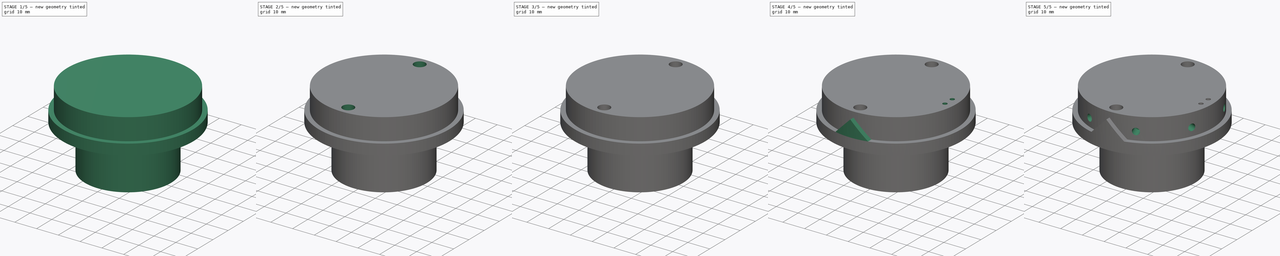
[diagram: build sequence overview — one tinted view per stage of 5, left to right]
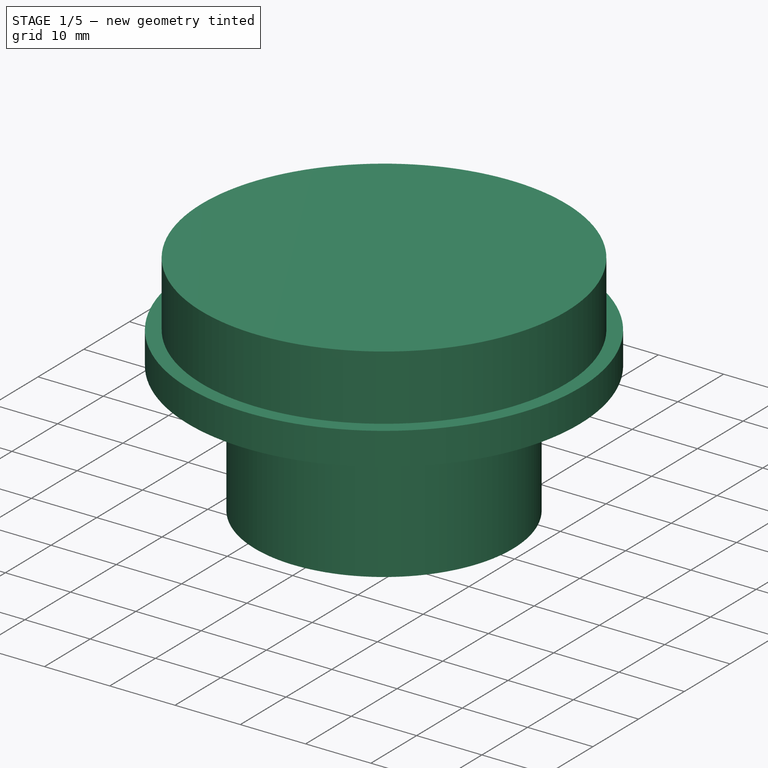
[diagram: stage 1 of 5 — iso view after this stage's code; geometry added in this stage tinted green]
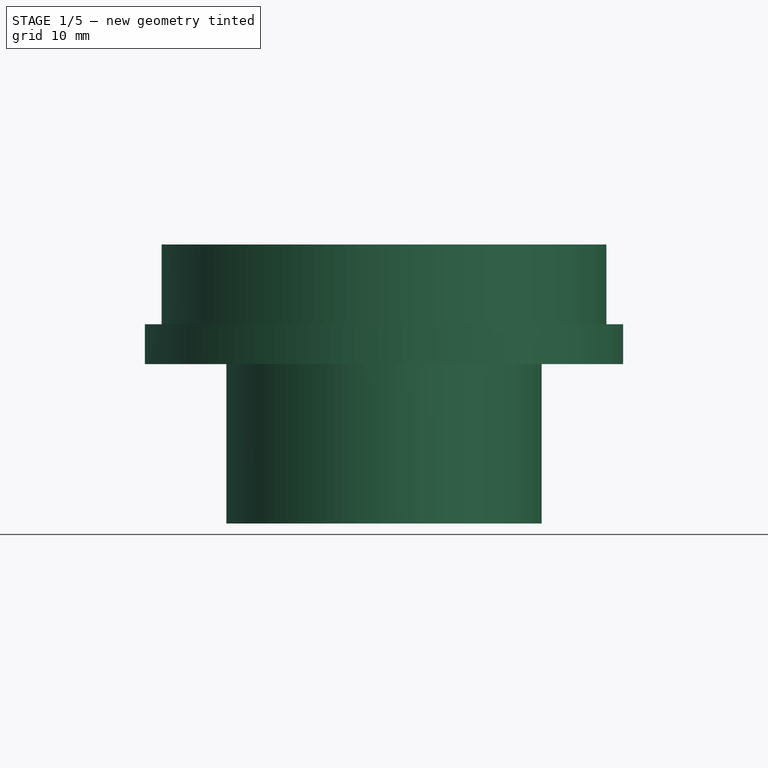
[diagram: stage 1 of 5 — front view after this stage's code; geometry added in this stage tinted green]
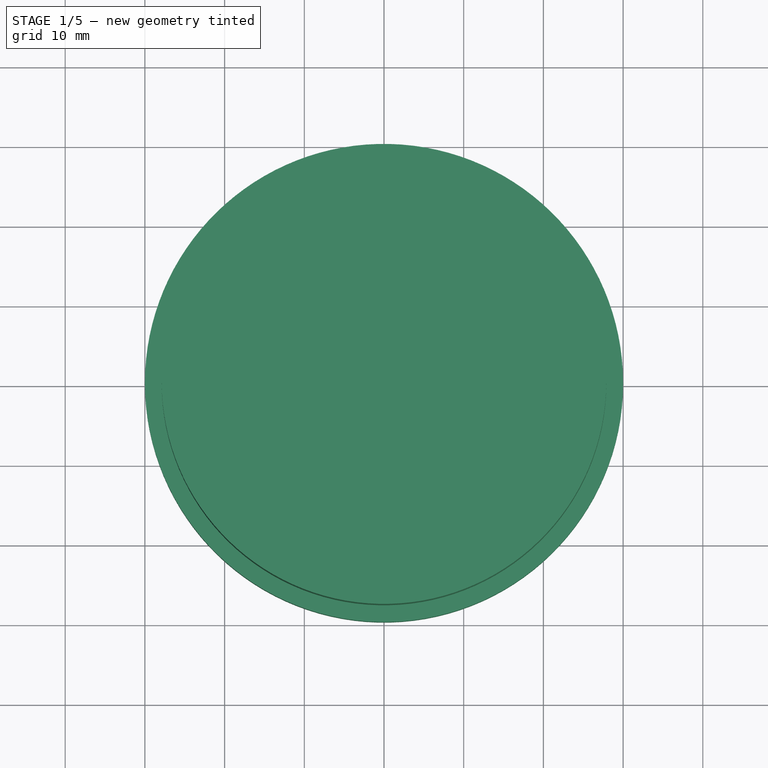
[diagram: stage 1 of 5 — top view after this stage's code; geometry added in this stage tinted green]
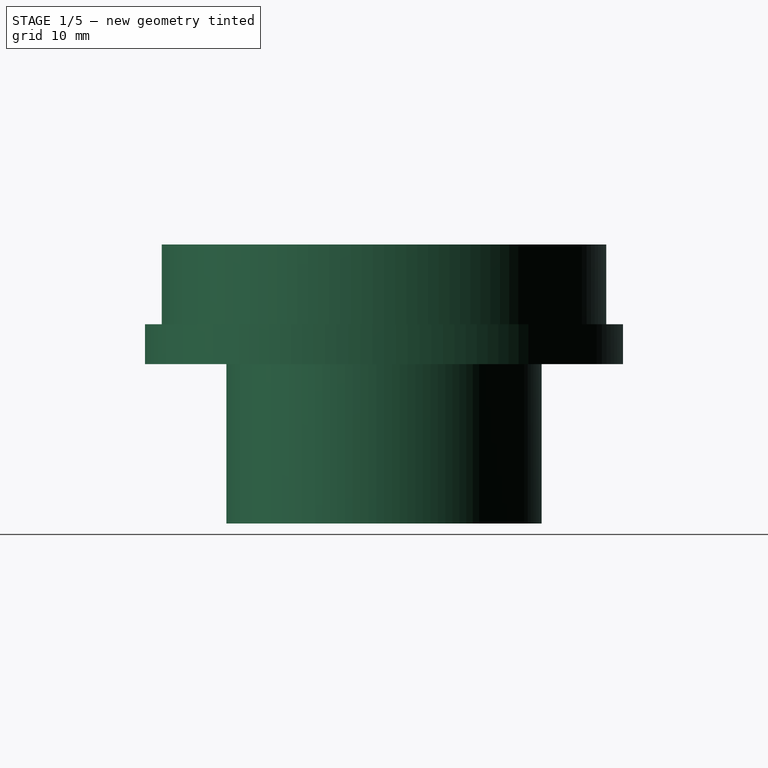
[diagram: stage 1 of 5 — right view after this stage's code; geometry added in this stage tinted green]
FCSTD DOCUMENT  (FreeCAD 1.0R39319 (Git))
Label: lower_closure
License: All rights reserved
objects: Sketcher::SketchObject×16, PartDesign::Pocket×9, PartDesign::Pad×4, PartDesign::PolarPattern×3, PartDesign::Plane×3, PartDesign::Fillet×1, PartDesign::Body×1
note: 84 computed .brp shape members not serialized (recipe doc carries the construction recipe); baked Part::Feature solids carry a one-line shape summary decoded from their .brp

FEATURE [Sketcher::SketchObject] Sketch
  ArcFitTolerance = 1e-06
  AttachmentSupport = -> [XY_Plane]
  FullyConstrained = true
  MakeInternals = false
  MapMode = 5
  sketch-geometry (1):
    g0: Circle CenterX=0 CenterY=0 CenterZ=0 NormalX=0 NormalY=0 NormalZ=1 AngleXU=0 Radius=30
  constraints (2):
    c: Diameter(g0) = 60
    c: Coincident(g0,g-1)
FEATURE [PartDesign::Pad] Pad
  Direction = (0,0,1)
  Length = 5
  Length2 = 10
  Profile = -> Sketch
  ReferenceAxis = -> Sketch [N_Axis]
  Refine = true
  Suppressed = false
  Type = 0
FEATURE [Sketcher::SketchObject] Sketch001
  ArcFitTolerance = 1e-06
  AttachmentSupport = -> [Pad]
  FullyConstrained = true
  MakeInternals = false
  MapMode = 5
  Placement = pos=(0,0,5) rot=(0,0,1;0rad)
FEATURE [Sketcher::SketchObject] Sketch002
  ArcFitTolerance = 1e-06
  AttachmentSupport = -> [Pad]
  FullyConstrained = true
  MakeInternals = false
  MapMode = 5
  Placement = pos=(0,0,0) rot=(1,0,0;3.14159rad)
  sketch-geometry (1):
    g0: Circle CenterX=0 CenterY=0 CenterZ=0 NormalX=0 NormalY=0 NormalZ=1 AngleXU=0 Radius=19.78
  constraints (2):
    c: Diameter(g0) = 39.56
    c: Coincident(g0,g-1)
FEATURE [PartDesign::Pad] Pad001  label="pistone_inf"
  BaseFeature = -> Pad
  Direction = (0,0,-1)
  Length = 20
  Length2 = 10
  Profile = -> Sketch002
  ReferenceAxis = -> Sketch002 [N_Axis]
  Refine = true
  Suppressed = false
  Type = 0
FEATURE [Sketcher::SketchObject] Sketch003
  ArcFitTolerance = 1e-06
  AttachmentSupport = -> [Pad001]
  FullyConstrained = true
  MakeInternals = false
  MapMode = 5
  Placement = pos=(0,0,5) rot=(0,0,1;0rad)
  sketch-geometry (1):
    g0: Circle CenterX=0 CenterY=0 CenterZ=0 NormalX=0 NormalY=0 NormalZ=1 AngleXU=0 Radius=27.9
  constraints (2):
    c: Diameter(g0) = 55.8
    c: Coincident(g0,g-1)
FEATURE [PartDesign::Pad] Pad002  label="chiusura_sup"
  BaseFeature = -> Pad001
  Direction = (0,0,1)
  Length = 10
  Length2 = 10
  Profile = -> Sketch003
  ReferenceAxis = -> Sketch003 [N_Axis]
  Refine = true
  Suppressed = false
  Type = 0
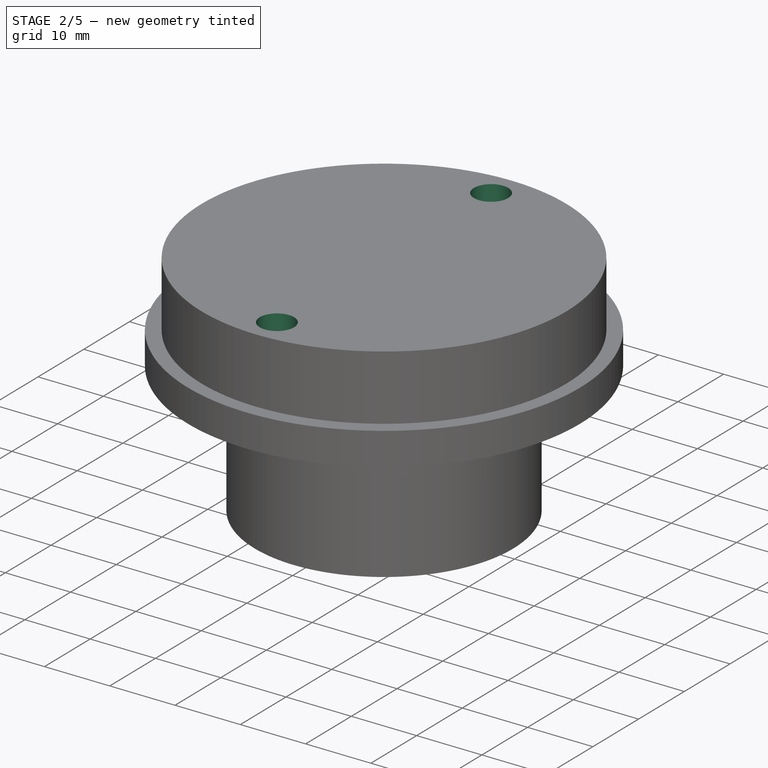
[diagram: stage 2 of 5 — iso view after this stage's code; geometry added in this stage tinted green]
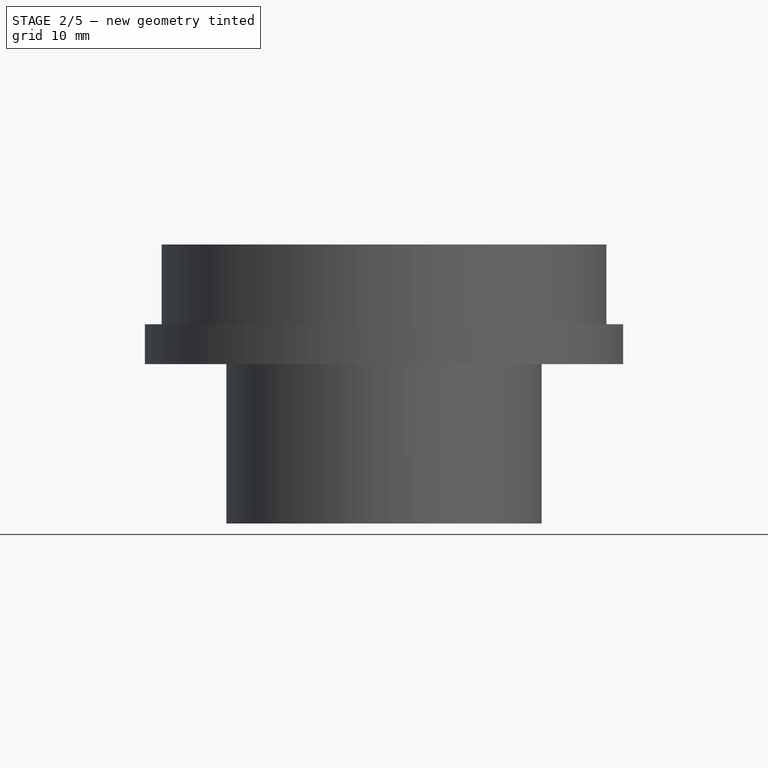
[diagram: stage 2 of 5 — front view after this stage's code; geometry added in this stage tinted green]
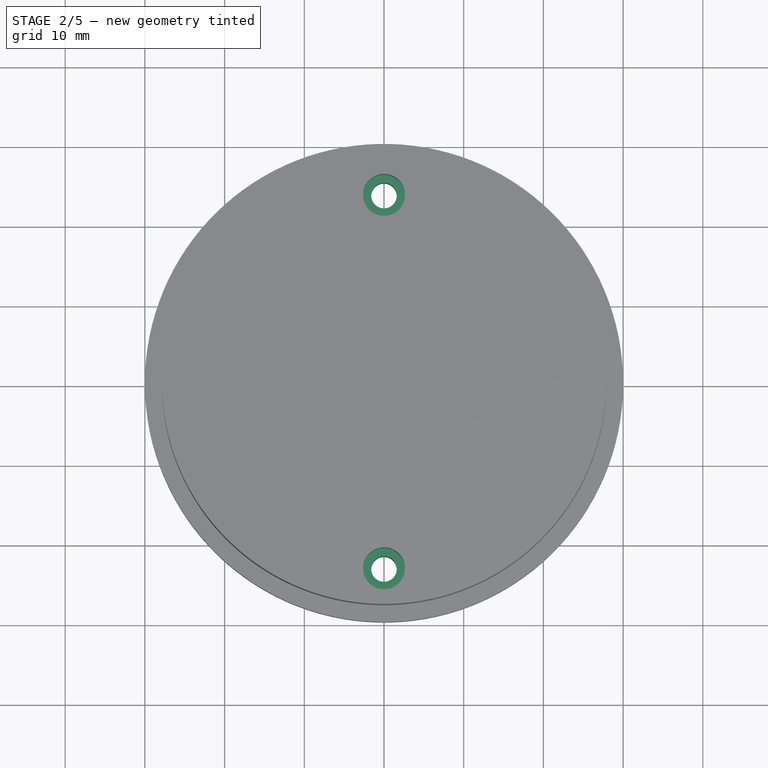
[diagram: stage 2 of 5 — top view after this stage's code; geometry added in this stage tinted green]
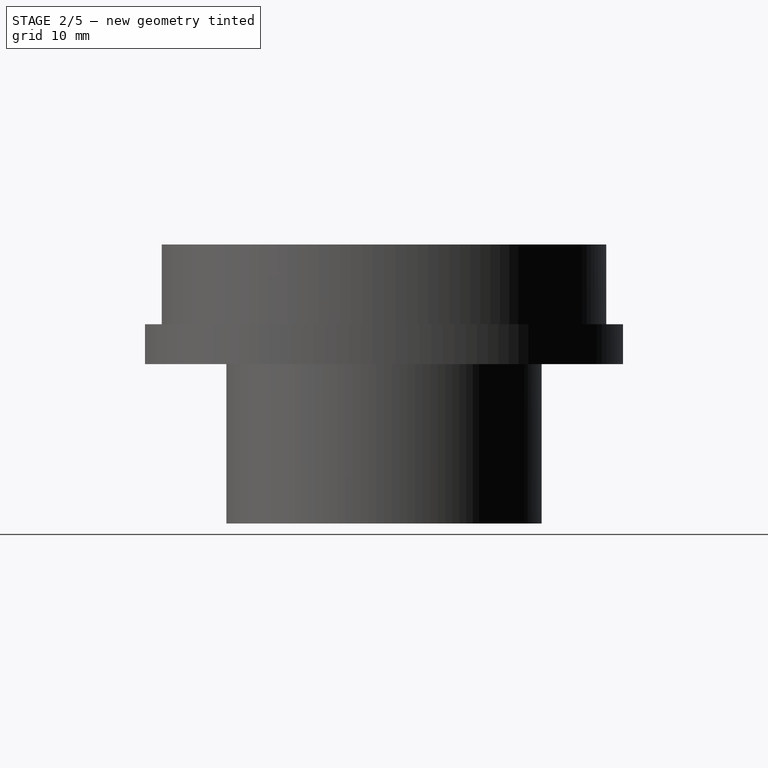
[diagram: stage 2 of 5 — right view after this stage's code; geometry added in this stage tinted green]
FEATURE [Sketcher::SketchObject] Sketch004
  ArcFitTolerance = 1e-06
  AttachmentSupport = -> [Pad002]
  ExternalGeometry = -> [Pad002]
  FullyConstrained = true
  MakeInternals = false
  MapMode = 5
  Placement = pos=(0,0,0) rot=(1,0,0;3.14159rad)
  sketch-geometry (1):
    g0: Circle CenterX=0 CenterY=23.4279 CenterZ=0 NormalX=0 NormalY=0 NormalZ=1 AngleXU=0 Radius=1.6
  constraints (3):
    c: Diameter(g0) = 3.2
    c: PointOnObject(g0,g-2)
    c: DistanceY(g-1,g0) = 23.4279
FEATURE [PartDesign::Pocket] Pocket  label="sede_vite_1"
  BaseFeature = -> Pad002
  Direction = (0,0,1)
  Length = 5
  Length2 = 5
  Profile = -> Sketch004
  ReferenceAxis = -> Sketch004 [N_Axis]
  Refine = true
  Suppressed = false
  Type = 1
FEATURE [Sketcher::SketchObject] Sketch005
  ArcFitTolerance = 1e-06
  FullyConstrained = true
  MakeInternals = false
  MapMode = 5
  Placement = pos=(0,0,0) rot=(1,0,0;3.14159rad)
  sketch-geometry (1):
    g0: Circle CenterX=0 CenterY=23.4279 CenterZ=0 NormalX=0 NormalY=0 NormalZ=1 AngleXU=0 Radius=3.5
  constraints (2):
    c: Diameter(g0) = 7
    c: Coincident(g0,g-3)
FEATURE [PartDesign::Pocket] Pocket001  label="sede_vite_2"
  BaseFeature = -> Pocket
  Direction = (0,1e-16,1)
  Length = 3
  Length2 = 5
  Profile = -> Sketch005
  ReferenceAxis = -> Sketch005 [N_Axis]
  Refine = true
  Suppressed = false
  Type = 0
FEATURE [Sketcher::SketchObject] Sketch006
  ArcFitTolerance = 1e-06
  AttachmentSupport = -> [Pocket001]
  ExternalGeometry = -> [Pocket001]
  FullyConstrained = true
  MakeInternals = false
  MapMode = 5
  Placement = pos=(0,0,15) rot=(0,0,1;0rad)
  sketch-geometry (1):
    g0: Circle CenterX=0 CenterY=-23.4279 CenterZ=0 NormalX=0 NormalY=0 NormalZ=1 AngleXU=0 Radius=2.625
  constraints (2):
    c: Diameter(g0) = 5.25
    c: Coincident(g0,g-3)
FEATURE [PartDesign::Pocket] Pocket002  label="sede_tondo_alluminio"
  BaseFeature = -> Pocket001
  Direction = (0,0,-1)
  Length = 5
  Length2 = 5
  Profile = -> Sketch006
  ReferenceAxis = -> Sketch006 [N_Axis]
  Refine = true
  Suppressed = false
  Type = 0
FEATURE [PartDesign::PolarPattern] PolarPattern
  Angle = 360
  Axis = -> Sketch004 [N_Axis]
  BaseFeature = -> Pocket002
  Mode = 0
  Occurrences = 2
  Offset = 120
  Originals = -> [Pocket,Pocket001,Pocket002]
  Refine = true
  Suppressed = false
  TransformMode = 0
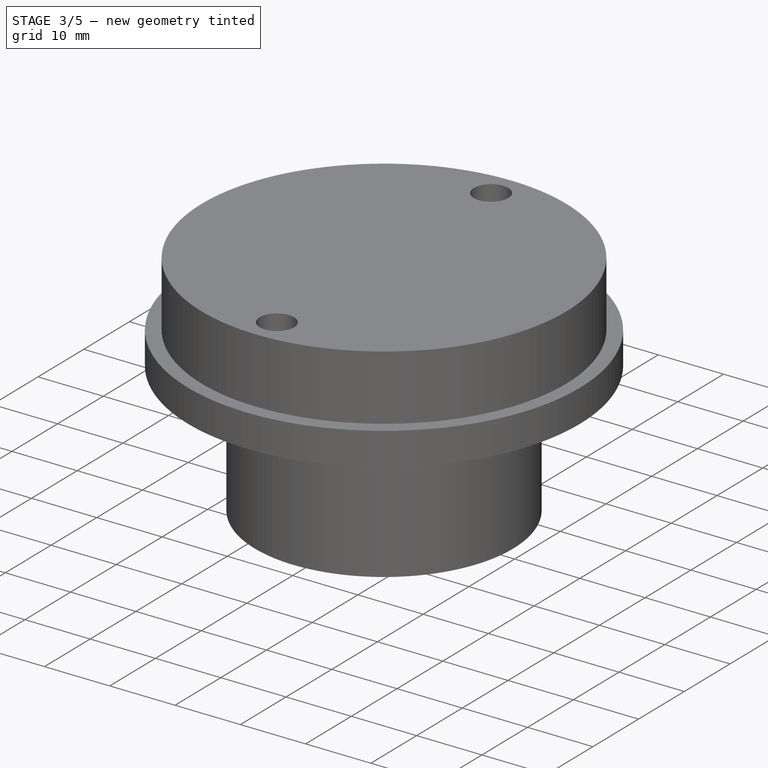
[diagram: stage 3 of 5 — iso view after this stage's code; geometry added in this stage tinted green]
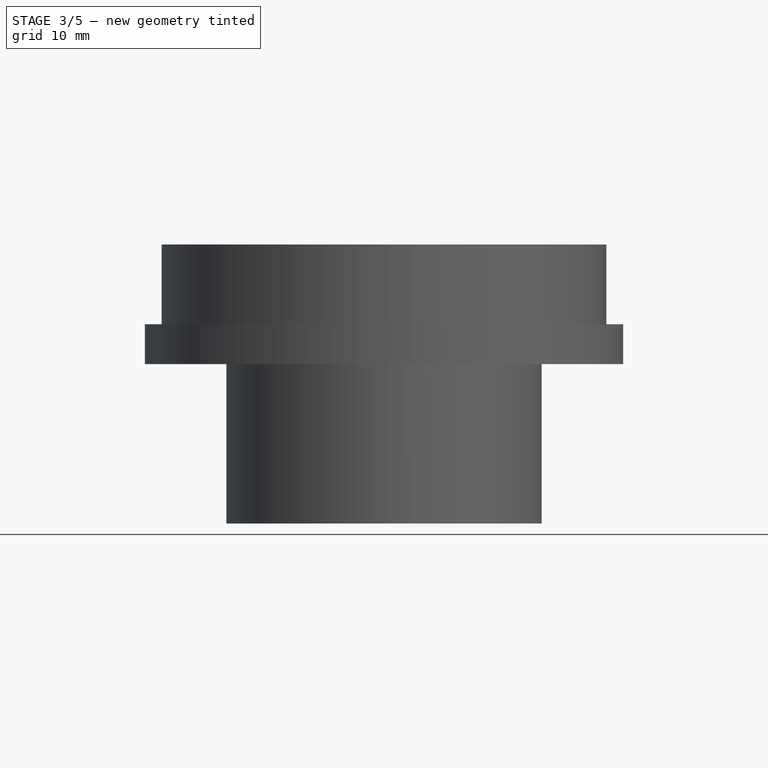
[diagram: stage 3 of 5 — front view after this stage's code; geometry added in this stage tinted green]
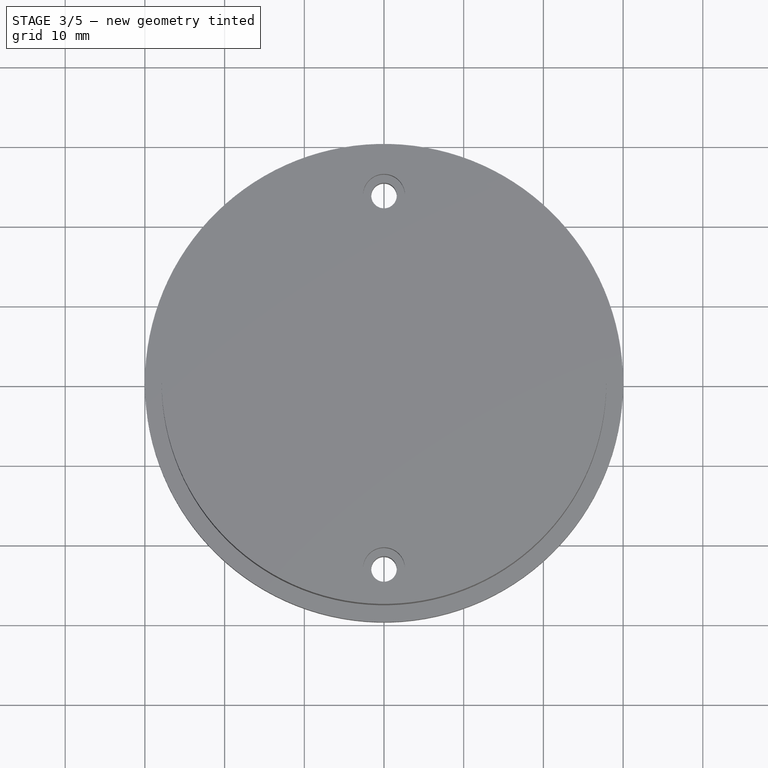
[diagram: stage 3 of 5 — top view after this stage's code; geometry added in this stage tinted green]
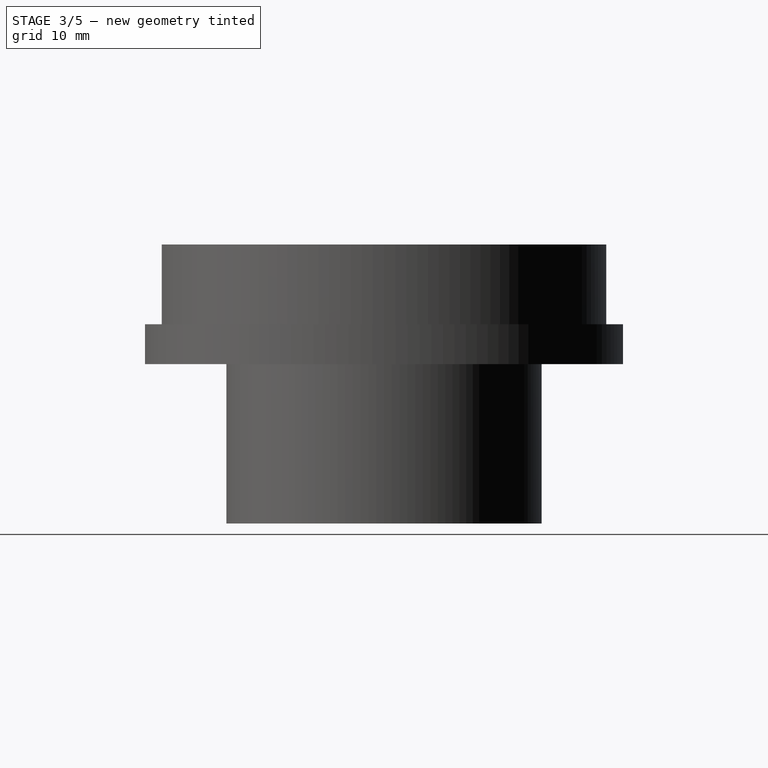
[diagram: stage 3 of 5 — right view after this stage's code; geometry added in this stage tinted green]
FEATURE [Sketcher::SketchObject] Sketch007
  ArcFitTolerance = 1e-06
  AttachmentSupport = -> [PolarPattern]
  FullyConstrained = true
  MakeInternals = false
  MapMode = 5
  Placement = pos=(0,0,-20) rot=(1,0,0;3.14159rad)
  sketch-geometry (1):
    g0: Circle CenterX=0 CenterY=0 CenterZ=0 NormalX=0 NormalY=0 NormalZ=1 AngleXU=0 Radius=2.4
  constraints (2):
    c: Diameter(g0) = 4.8
    c: Coincident(g0,g-1)
FEATURE [PartDesign::Pocket] Pocket003  label="sede_anelllo"
  BaseFeature = -> PolarPattern
  Direction = (0,0,1)
  Length = 23
  Length2 = 5
  Profile = -> Sketch007
  ReferenceAxis = -> Sketch007 [N_Axis]
  Refine = true
  Suppressed = false
  Type = 0
FEATURE [Sketcher::SketchObject] Sketch008
  ArcFitTolerance = 1e-06
  AttachmentSupport = -> [Pocket003]
  FullyConstrained = false
  MakeInternals = false
  MapMode = 5
  Placement = pos=(0,0,0) rot=(1,0,0;3.14159rad)
  sketch-geometry (10):
    g0: Circle [constr] CenterX=0 CenterY=0 CenterZ=0 NormalX=0 NormalY=0 NormalZ=1 AngleXU=0 Radius=20.95
    g1: Circle [constr] CenterX=0 CenterY=0 CenterZ=0 NormalX=0 NormalY=0 NormalZ=1 AngleXU=0 Radius=27.9
    g2: LineSegment [constr] StartX=27.4 StartY=14.965 StartZ=0 EndX=27.4 EndY=-15.9104 EndZ=0
    g3: LineSegment [constr] StartX=24.175 StartY=15.0055 StartZ=0 EndX=24.175 EndY=-15.1331 EndZ=0
    g4: LineSegment [constr] StartX=20.95 StartY=15.0459 StartZ=0 EndX=20.95 EndY=-15.8152 EndZ=0
    g5: LineSegment [constr] StartX=27.9 StartY=15.1417 StartZ=0 EndX=27.9 EndY=-17.4156 EndZ=0
    g6: LineSegment StartX=21.1 StartY=4.8 StartZ=0 EndX=21.1 EndY=-4.8 EndZ=0
    g7: LineSegment StartX=21.1 StartY=-4.8 StartZ=0 EndX=27.25 EndY=-4.8 EndZ=0
    g8: LineSegment StartX=27.25 StartY=-4.8 StartZ=0 EndX=27.25 EndY=4.8 EndZ=0
    g9: LineSegment StartX=27.25 StartY=4.8 StartZ=0 EndX=21.1 EndY=4.8 EndZ=0
  constraints (22):
    c: Diameter(g0) = 41.9
    c: Coincident(g0,g-1)
    c: Diameter(g1) = 55.8
    c: Coincident(g1,g0)
    c: Vertical(g2)
    c: Vertical(g3)
    c: Vertical(g4)
    c: Vertical(g5)
    c: Tangent(g5,g1)
    c: Tangent(g4,g0)
    c: DistanceX(g2,g5) = 0.5
    c: Symmetric(g2,g4,g3)
    c: Coincident(g6,g7)
    c: Coincident(g7,g8)
    c: Coincident(g8,g9)
    c: Coincident(g9,g6)
    c: Vertical(g8)
    c: Horizontal(g7)
    c: Symmetric(g6,g8,g3)
    c: Symmetric(g6,g6,g-1)
    c: DistanceX(g6,g8) = 6.15
    c: DistanceY(g6,g6) = 9.6
FEATURE [PartDesign::Pocket] Pocket004  label="sede_presa_elettrica"
  BaseFeature = -> Pocket003
  Direction = (0,0,1)
  Length = 12.6
  Length2 = 5
  Profile = -> Sketch008
  ReferenceAxis = -> Sketch008 [N_Axis]
  Refine = true
  Suppressed = false
  Type = 0
FEATURE [PartDesign::Fillet] Fillet
  Base = -> Pocket004 [Edge21,Edge23,Edge19,Edge18]
  BaseFeature = -> Pocket004
  Radius = 3
  Refine = true
  SupportTransform = false
  Suppressed = false
  UseAllEdges = false
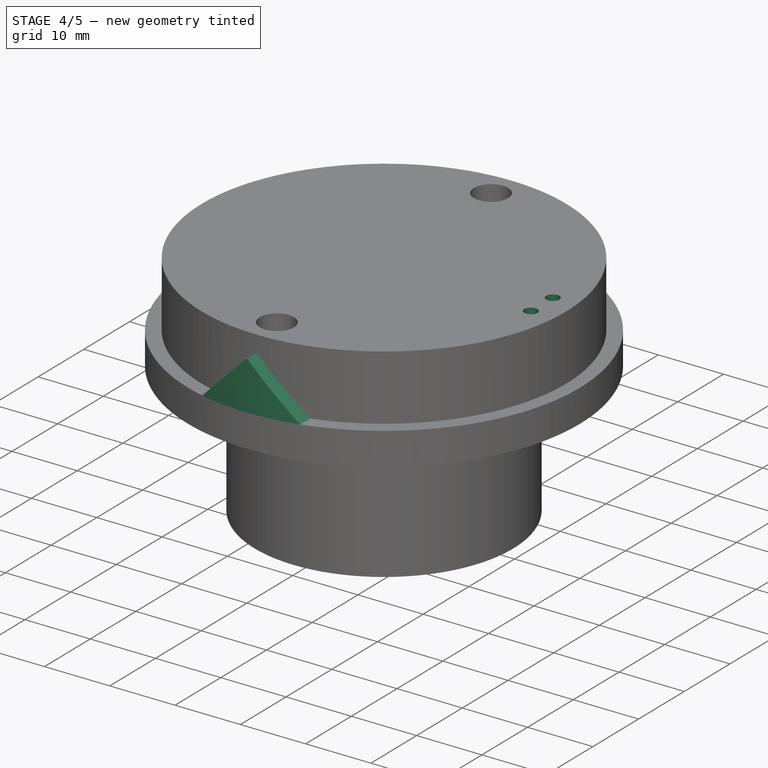
[diagram: stage 4 of 5 — iso view after this stage's code; geometry added in this stage tinted green]
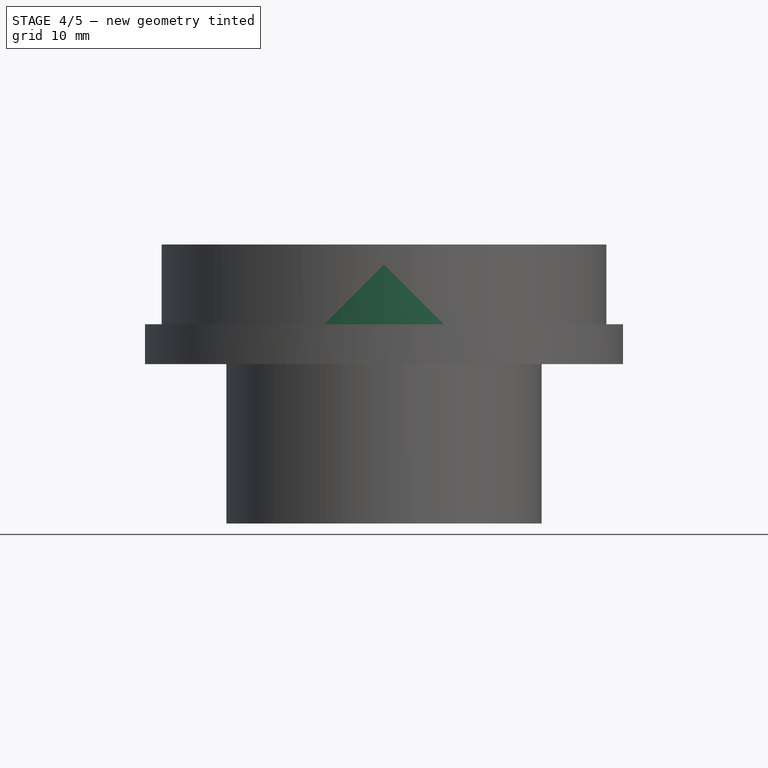
[diagram: stage 4 of 5 — front view after this stage's code; geometry added in this stage tinted green]
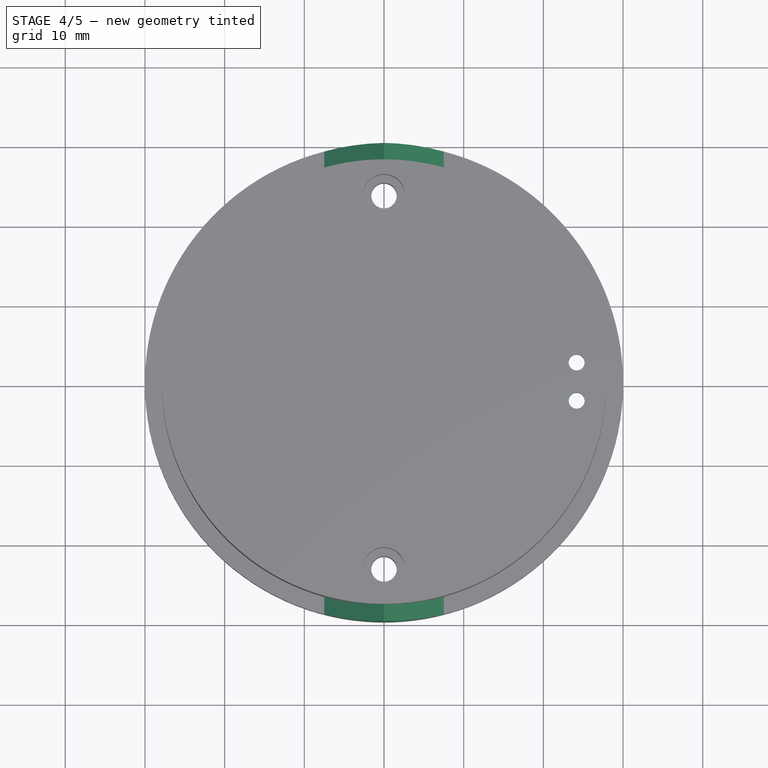
[diagram: stage 4 of 5 — top view after this stage's code; geometry added in this stage tinted green]
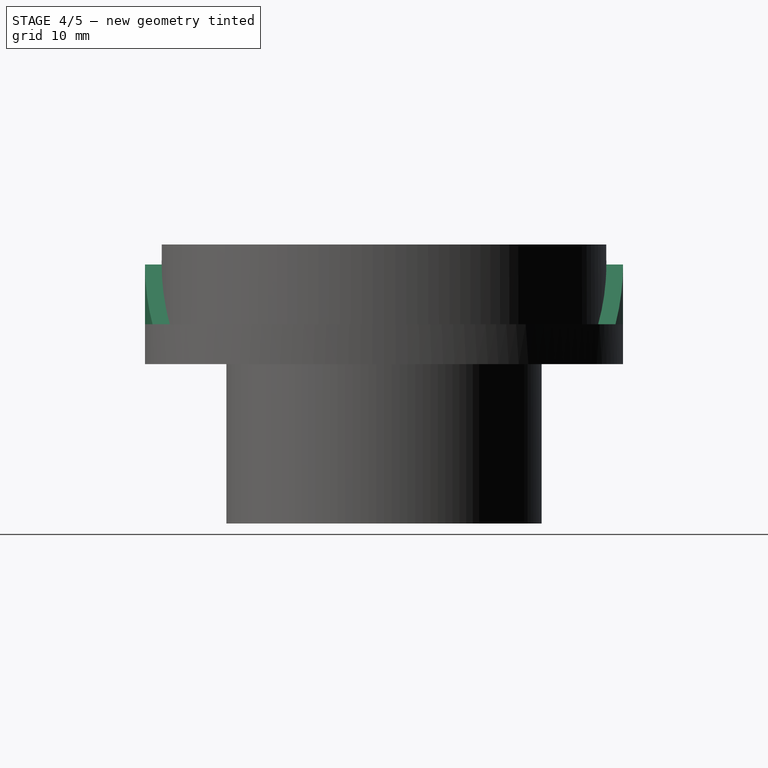
[diagram: stage 4 of 5 — right view after this stage's code; geometry added in this stage tinted green]
FEATURE [Sketcher::SketchObject] Sketch009
  ArcFitTolerance = 1e-06
  AttachmentSupport = -> [Fillet]
  ExternalGeometry = -> [Fillet]
  FullyConstrained = false
  MakeInternals = false
  MapMode = 5
  Placement = pos=(0,0,12.6) rot=(1,0,0;3.14159rad)
  sketch-geometry (3):
    g0: LineSegment [constr] StartX=24.175 StartY=3.19932 StartZ=0 EndX=24.175 EndY=-3.41656 EndZ=0
    g1: Circle CenterX=24.175 CenterY=2.4 CenterZ=0 NormalX=0 NormalY=0 NormalZ=1 AngleXU=0 Radius=1
    g2: Circle CenterX=24.175 CenterY=-2.4 CenterZ=0 NormalX=0 NormalY=0 NormalZ=1 AngleXU=0 Radius=1
  constraints (6):
    c: Symmetric(g-4,g-3,g0)
    c: Diameter(g1) = 2
    c: PointOnObject(g1,g0)
    c: Diameter(g2) = 2
    c: Symmetric(g1,g2,g-1)
    c: DistanceY(g-1,g1) = 2.4
FEATURE [PartDesign::Pocket] Pocket005
  BaseFeature = -> Fillet
  Direction = (0,0,1)
  Length = 5
  Length2 = 5
  Profile = -> Sketch009
  ReferenceAxis = -> Sketch009 [N_Axis]
  Refine = true
  Suppressed = false
  Type = 1
FEATURE [Sketcher::SketchObject] Sketch010
  ArcFitTolerance = 1e-06
  AttachmentSupport = -> [Pocket005]
  ExternalGeometry = -> [Pocket005]
  FullyConstrained = true
  MakeInternals = false
  MapMode = 5
  Placement = pos=(0,0,15) rot=(0,0,1;0rad)
  sketch-geometry (1):
    g0: LineSegment StartX=0 StartY=0 StartZ=0 EndX=1.8e-15 EndY=30 EndZ=0
  constraints (3):
    c: Coincident(g0,g-1)
    c: Angle(g-2,g0) = 0
    c: PointOnObject(g0,g-4)
FEATURE [PartDesign::Plane] DatumPlane
  AttachmentSupport = -> [Sketch010]
  Length = 70.9545
  MapMode = 7
  Placement = pos=(1.8e-15,30,15) rot=(1,0,0;1.5708rad)
  ResizeMode = 0
  Width = 60.9545
FEATURE [Sketcher::SketchObject] Sketch011
  ArcFitTolerance = 1e-06
  AttachmentSupport = -> [DatumPlane]
  ExternalGeometry = -> [Pocket005]
  FullyConstrained = false
  MakeInternals = false
  MapMode = 5
  Placement = pos=(1.8e-15,30,15) rot=(1,0,0;1.5708rad)
  sketch-geometry (4):
    g0: LineSegment [constr] StartX=-28.2605 StartY=-2.5 StartZ=0 EndX=28.2605 EndY=-2.5 EndZ=0
    g1: LineSegment StartX=-7.5 StartY=-10 StartZ=0 EndX=-1e-16 EndY=-2.5 EndZ=0
    g2: LineSegment StartX=-1e-16 StartY=-2.5 StartZ=0 EndX=7.5 EndY=-10 EndZ=0
    g3: LineSegment StartX=7.5 StartY=-10 StartZ=0 EndX=-7.5 EndY=-10 EndZ=0
  constraints (10):
    c: Horizontal(g0)
    c: DistanceY(g-3,g0) = 7.5
    c: PointOnObject(g1,g-3)
    c: Symmetric(g0,g0,g1)
    c: Coincident(g1,g2)
    c: Coincident(g2,g3)
    c: Coincident(g3,g1)
    c: PointOnObject(g1,g-2)
    c: Symmetric(g1,g2,g-2)
    c: DistanceX(g1,g-1) = 7.5
FEATURE [PartDesign::Pad] Pad003
  BaseFeature = -> Pocket005
  Direction = (0,-1,2e-16)
  Length = 10
  Length2 = 10
  Profile = -> Sketch011
  ReferenceAxis = -> Sketch011 [N_Axis]
  Refine = true
  Suppressed = false
  Type = 1
FEATURE [PartDesign::PolarPattern] PolarPattern001
  Angle = 360
  Axis = -> Z_Axis
  BaseFeature = -> Pad003
  Mode = 0
  Occurrences = 2
  Offset = 120
  Originals = -> [Pad003]
  Refine = true
  Suppressed = false
  TransformMode = 0
FEATURE [Sketcher::SketchObject] Sketch012
  ArcFitTolerance = 1e-06
  AttachmentSupport = -> [PolarPattern001]
  ExternalGeometry = -> [PolarPattern001]
  FullyConstrained = false
  MakeInternals = false
  MapMode = 5
  Placement = pos=(0,0,15) rot=(0,0,1;0rad)
  sketch-geometry (2):
    g0: Circle CenterX=0 CenterY=0 CenterZ=0 NormalX=0 NormalY=0 NormalZ=1 AngleXU=0 Radius=30
    g1: Circle CenterX=0 CenterY=0 CenterZ=0 NormalX=0 NormalY=0 NormalZ=1 AngleXU=0 Radius=39.0235
  constraints (2):
    c: Tangent(g0,g-4)
    c: Coincident(g1,g0)
FEATURE [PartDesign::Pocket] Pocket006
  BaseFeature = -> PolarPattern001
  Direction = (0,0,-1)
  Length = 10
  Length2 = 5
  Profile = -> Sketch012
  ReferenceAxis = -> Sketch012 [N_Axis]
  Refine = true
  Suppressed = false
  Type = 0
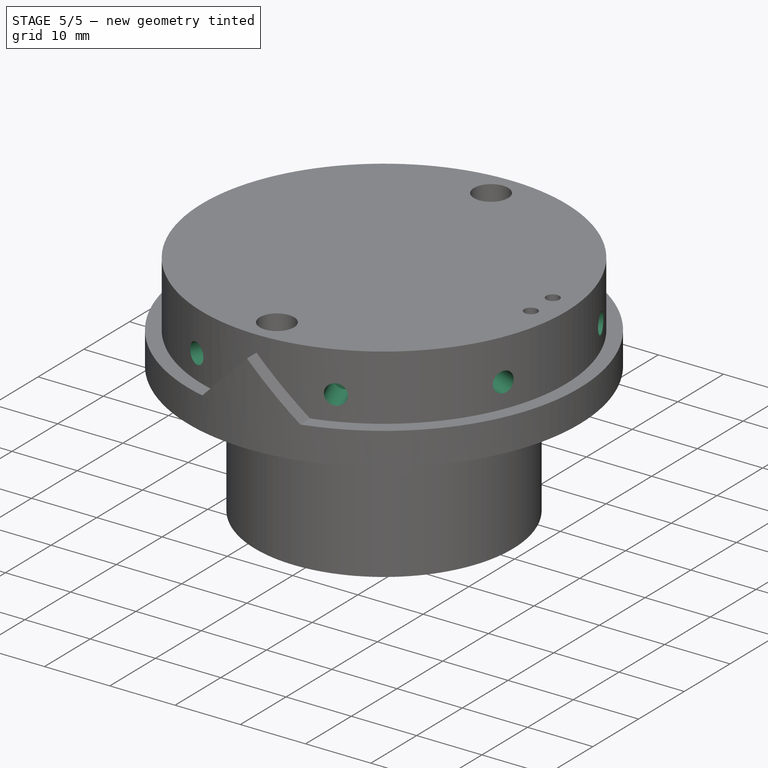
[diagram: stage 5 of 5 — iso view after this stage's code; geometry added in this stage tinted green]
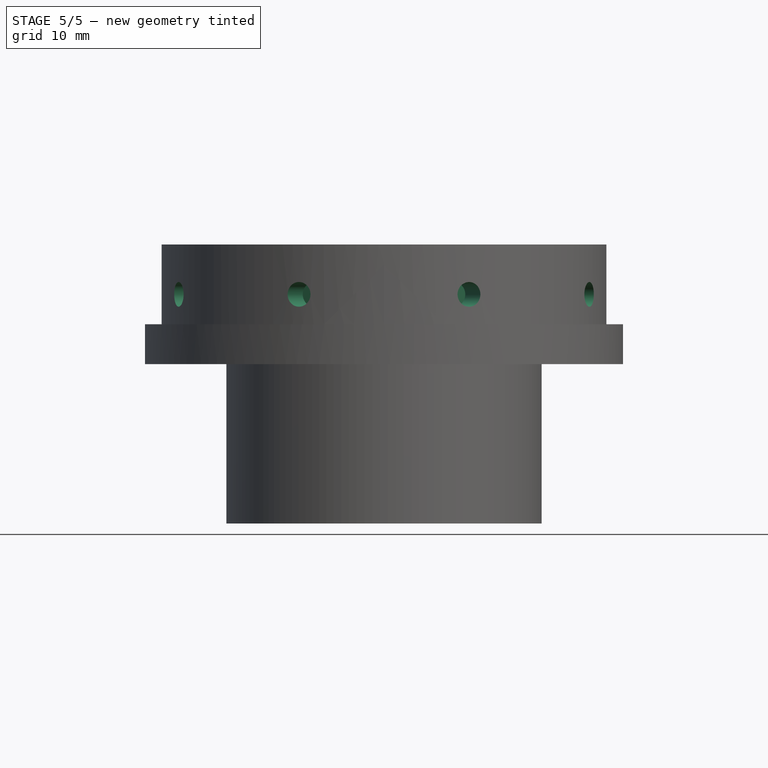
[diagram: stage 5 of 5 — front view after this stage's code; geometry added in this stage tinted green]
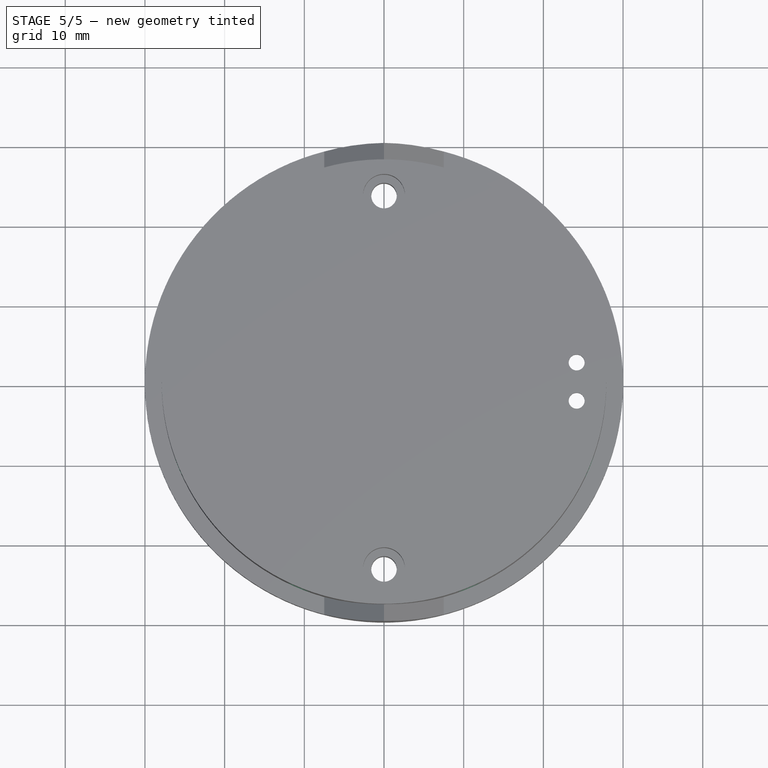
[diagram: stage 5 of 5 — top view after this stage's code; geometry added in this stage tinted green]
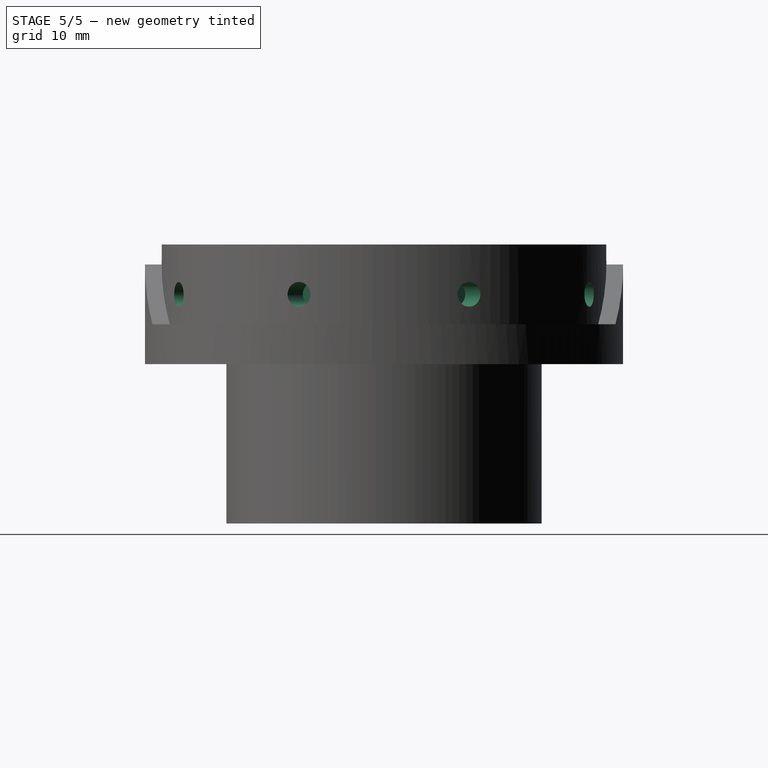
[diagram: stage 5 of 5 — right view after this stage's code; geometry added in this stage tinted green]
FEATURE [Sketcher::SketchObject] Sketch013
  ArcFitTolerance = 1e-06
  AttachmentSupport = -> [Pocket006]
  ExternalGeometry = -> [Pocket006]
  FullyConstrained = true
  MakeInternals = false
  MapMode = 5
  Placement = pos=(0,0,15) rot=(0,0,1;0rad)
  sketch-geometry (3):
    g0: LineSegment [constr] StartX=0 StartY=0 StartZ=0 EndX=19.7283 EndY=19.7283 EndZ=0
    g1: LineSegment StartX=0 StartY=0 StartZ=0 EndX=25.7762 EndY=10.6769 EndZ=0
    g2: LineSegment StartX=0 StartY=0 StartZ=0 EndX=10.6769 EndY=25.7762 EndZ=0
  constraints (9):
    c: Coincident(g0,g-1)
    c: PointOnObject(g0,g-3)
    c: Coincident(g1,g0)
    c: PointOnObject(g1,g-3)
    c: Coincident(g2,g0)
    c: PointOnObject(g2,g-3)
    c: Angle(g-1,g0) = 0.785398
    c: Angle(g1,g2) = 0.785398
    c: Angle(g0,g2) = 0.392699
FEATURE [PartDesign::Plane] DatumPlane001
  AttachmentSupport = -> [Sketch013]
  Length = 90.8095
  MapMode = 7
  Placement = pos=(10.6769,25.7762,15) rot=(0.962637,-0.19148,-0.19148;1.60887rad)
  ResizeMode = 0
  Width = 62.5137
FEATURE [PartDesign::Plane] DatumPlane002
  AttachmentSupport = -> [Sketch013]
  Length = 90.6599
  MapMode = 7
  Placement = pos=(25.7762,10.6769,15) rot=(0.726831,-0.485653,-0.485653;1.88458rad)
  ResizeMode = 0
  Width = 62.5026
FEATURE [Sketcher::SketchObject] Sketch014
  ArcFitTolerance = 1e-06
  AttachmentSupport = -> [DatumPlane002]
  ExternalGeometry = -> [Pocket006]
  FullyConstrained = false
  MakeInternals = false
  MapMode = 5
  Placement = pos=(25.7762,10.6769,15) rot=(0.726831,-0.485653,-0.485653;1.88458rad)
  sketch-geometry (2):
    g0: LineSegment [constr] StartX=-23.325 StartY=-2.5 StartZ=0 EndX=24.4417 EndY=-2.5 EndZ=0
    g1: Circle CenterX=0 CenterY=-6.25 CenterZ=0 NormalX=0 NormalY=0 NormalZ=1 AngleXU=0 Radius=1.55
  constraints (5):
    c: Horizontal(g0)
    c: DistanceY(g-4,g0) = 7.5
    c: Diameter(g1) = 3.1
    c: PointOnObject(g1,g-2)
    c: DistanceY(g1,g0) = 3.75
FEATURE [Sketcher::SketchObject] Sketch015
  ArcFitTolerance = 1e-06
  AttachmentSupport = -> [DatumPlane001]
  ExternalGeometry = -> [Pocket006]
  FullyConstrained = false
  MakeInternals = false
  MapMode = 5
  Placement = pos=(10.6769,25.7762,15) rot=(0.962637,-0.19148,-0.19148;1.60887rad)
  sketch-geometry (2):
    g0: LineSegment [constr] StartX=-25.7983 StartY=-2.5 StartZ=0 EndX=27.9533 EndY=-2.5 EndZ=0
    g1: Circle CenterX=0 CenterY=-6.25 CenterZ=0 NormalX=0 NormalY=0 NormalZ=1 AngleXU=0 Radius=1.55
  constraints (5):
    c: Horizontal(g0)
    c: DistanceY(g-4,g0) = 7.5
    c: Diameter(g1) = 3.1
    c: PointOnObject(g1,g-2)
    c: DistanceY(g1,g0) = 3.75
FEATURE [PartDesign::Pocket] Pocket007
  BaseFeature = -> Pocket006
  Direction = (0.92388,0.382683,-1e-16)
  Length = 5
  Length2 = 5
  Profile = -> Sketch014
  ReferenceAxis = -> Sketch014 [N_Axis]
  Refine = true
  Reversed = true
  Suppressed = false
  Type = 0
FEATURE [PartDesign::Pocket] Pocket008
  BaseFeature = -> Pocket007
  Direction = (0.382683,0.92388,0)
  Length = 5
  Length2 = 5
  Profile = -> Sketch015
  ReferenceAxis = -> Sketch015 [N_Axis]
  Refine = true
  Reversed = true
  Suppressed = false
  Type = 0
FEATURE [PartDesign::PolarPattern] PolarPattern002
  Angle = 360
  Axis = -> Z_Axis
  BaseFeature = -> Pocket008
  Mode = 0
  Occurrences = 4
  Offset = 120
  Originals = -> [Pocket007,Pocket008]
  Refine = true
  Suppressed = false
  TransformMode = 0
FEATURE [PartDesign::Body] Body
  AllowCompound = false
  Group = -> [Sketch,Pad,Sketch001,Sketch002,Pad001,Sketch003,Pad002,Sketch004,Pocket,Sketch005,Pocket001,Sketch006,Pocket002,PolarPattern,Sketch007,Pocket003,Sketch008,Pocket004,Fillet,Sketch009,Pocket005,Sketch010,DatumPlane,Sketch011,Pad003,PolarPattern001,Sketch012,Pocket006,Sketch013,DatumPlane001,DatumPlane002,Sketch014,Sketch015,Pocket007,Pocket008,PolarPattern002]
  Origin = -> Origin
  Tip = -> PolarPattern002
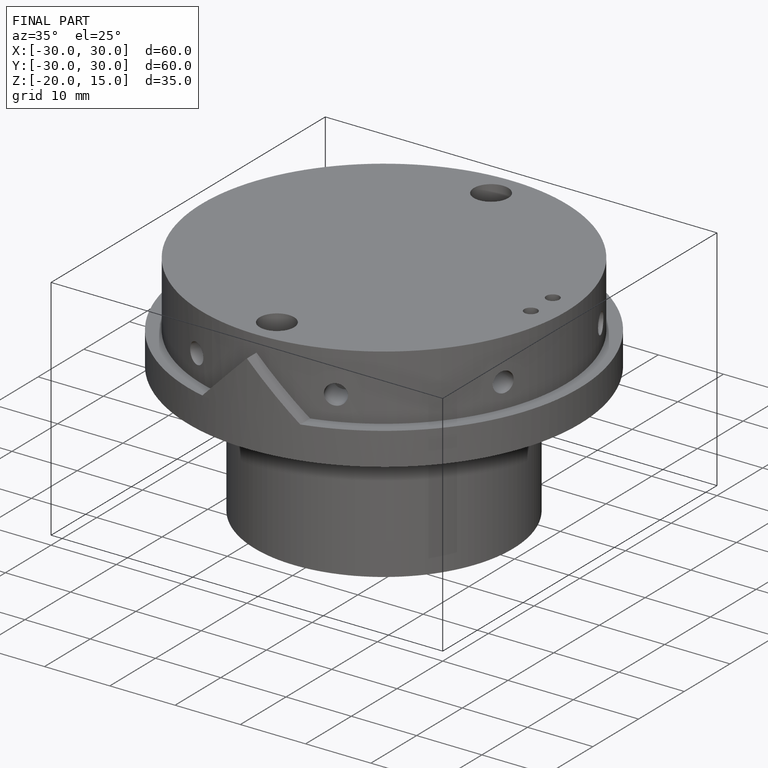
[diagram: finished part — iso view with bounding-box wireframe]
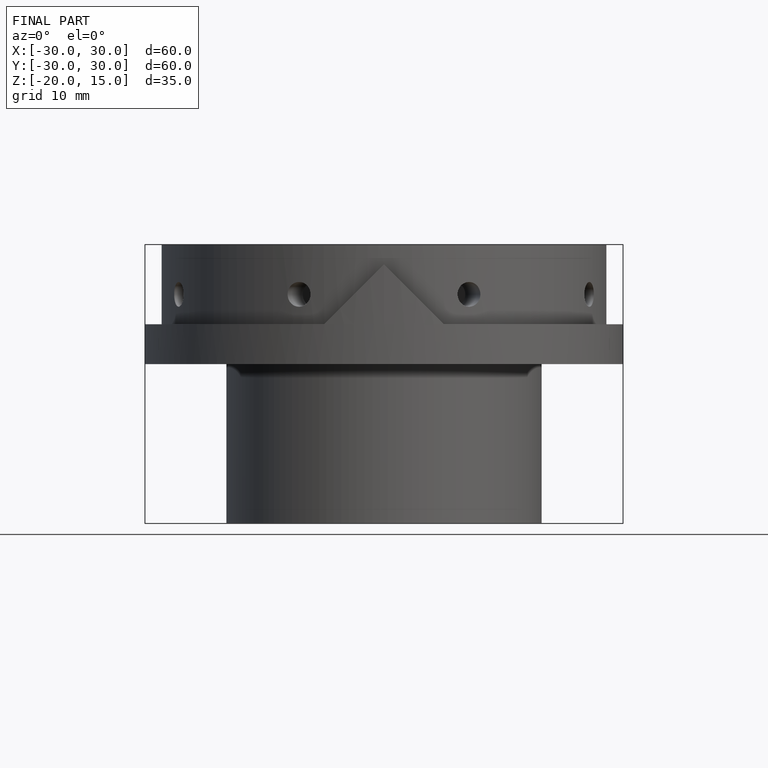
[diagram: finished part — front view with bounding-box wireframe]
